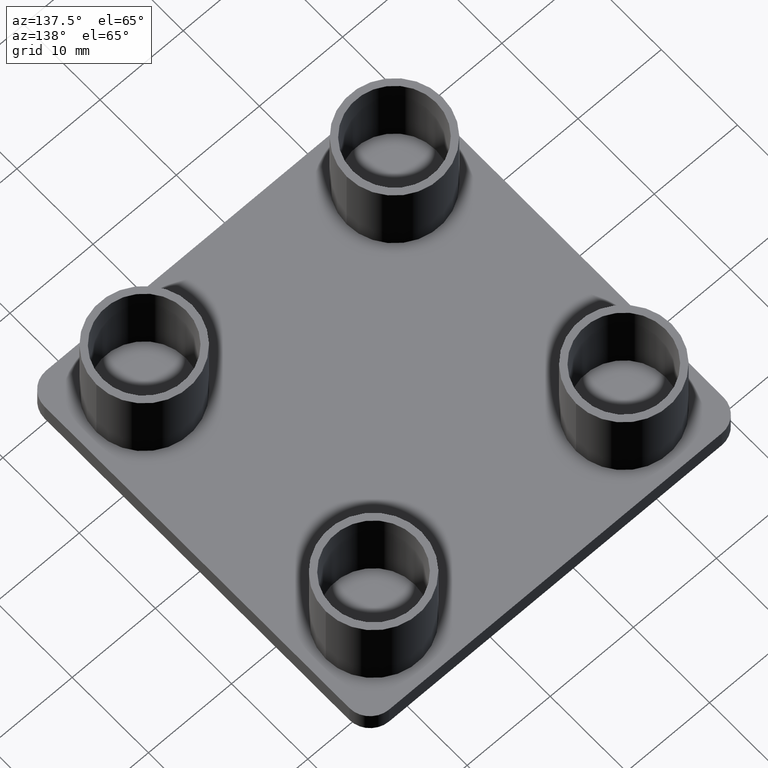
[diagram: clean part render]
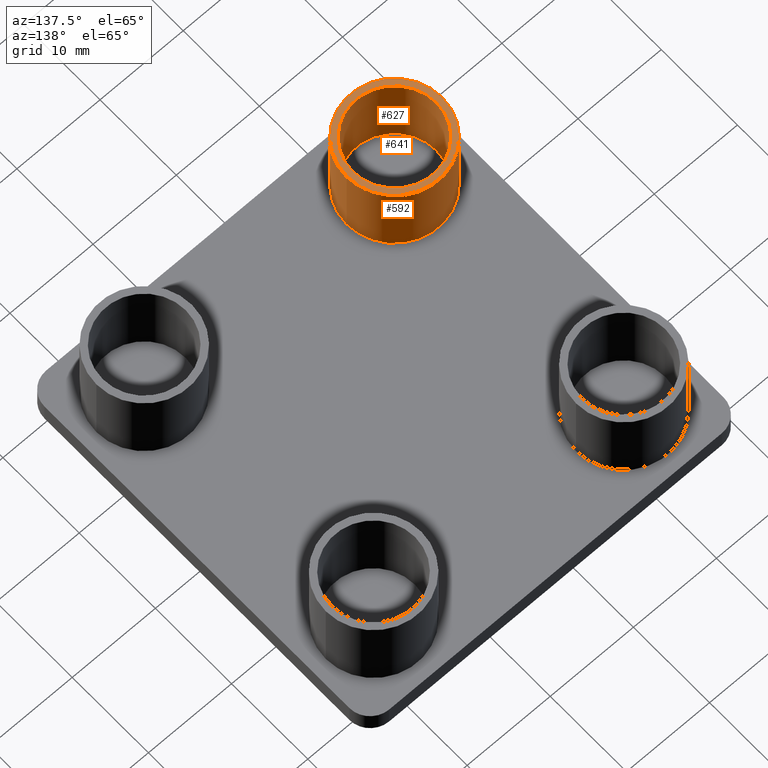
[diagram: same view with one multi-face feature highlighted, each face labeled with its STEP entity id]
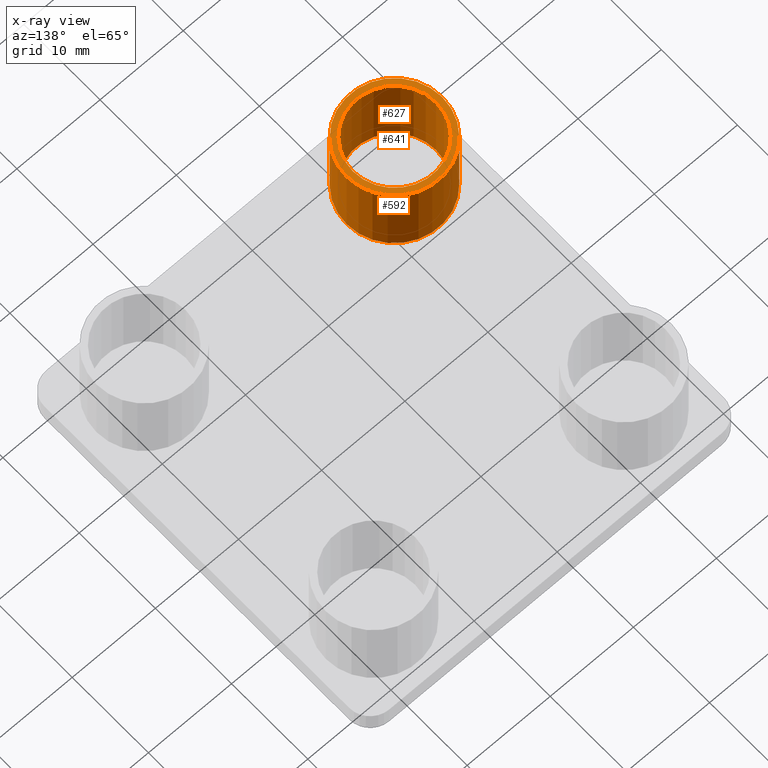
[diagram: x-ray of the same camera — body ghosted, the whole feature saturated]
A machine part, auxiliary view. The highlighted faces form ONE feature: a stepped (counterbored) hole: 2 coaxial cylindrical walls of radii 5 -> 5.75 mm joined by 1 annular planar shoulder face(s). The faces share edges in the B-rep.
The next image is the same camera in x-ray: the body ghosted and the whole hole feature saturated, so the bore chain is visible through the body.
Their STEP definitions:
[1] entity #592 (Cylinder):
#293=CARTESIAN_POINT('',(1.699955499992746,-15.050022499940042,0.0));
#294=VERTEX_POINT('',#293);
#295=CARTESIAN_POINT('',(13.199955499946554,-15.050022499940042,0.0));
#296=VERTEX_POINT('',#295);
#297=CARTESIAN_POINT('',(7.449955499969747,-15.050022499940042,0.0));
#298=DIRECTION('',(0.0,0.0,1.0));
#299=DIRECTION('',(1.0,0.0,0.0));
#300=AXIS2_PLACEMENT_3D('',#297,#298,#299);
#301=CIRCLE('',#300,5.749999999977001);
#302=EDGE_CURVE('',#294,#296,#301,.T.);
#304=CARTESIAN_POINT('',(7.449955499969747,-15.050022499940042,0.0));
#305=DIRECTION('',(0.0,0.0,1.0));
#306=DIRECTION('',(1.0,0.0,0.0));
#307=AXIS2_PLACEMENT_3D('',#304,#305,#306);
#308=CIRCLE('',#307,5.749999999977001);
#309=EDGE_CURVE('',#296,#294,#308,.T.);
#558=CARTESIAN_POINT('',(7.449955499969747,-15.050022499940042,0.0));
#559=DIRECTION('',(0.0,0.0,1.0));
#560=DIRECTION('',(1.0,0.0,0.0));
#561=AXIS2_PLACEMENT_3D('',#558,#559,#560);
#562=CYLINDRICAL_SURFACE('',#561,5.749999999977001);
#563=CARTESIAN_POINT('',(1.699955499992746,-15.050022499940042,10.0));
#564=VERTEX_POINT('',#563);
#565=CARTESIAN_POINT('',(13.199955499946554,-15.050022499940042,10.0));
#566=VERTEX_POINT('',#565);
#567=CARTESIAN_POINT('',(7.449955499969747,-15.050022499940042,10.0));
#568=DIRECTION('',(0.0,0.0,1.0));
#569=DIRECTION('',(1.0,0.0,0.0));
#570=AXIS2_PLACEMENT_3D('',#567,#568,#569);
#571=CIRCLE('',#570,5.749999999977001);
#572=EDGE_CURVE('',#564,#566,#571,.T.);
#573=ORIENTED_EDGE('',*,*,#572,.F.);
#574=CARTESIAN_POINT('',(7.449955499969747,-15.050022499940042,10.0));
#575=DIRECTION('',(0.0,0.0,1.0));
#576=DIRECTION('',(1.0,0.0,0.0));
#577=AXIS2_PLACEMENT_3D('',#574,#575,#576);
#578=CIRCLE('',#577,5.749999999977001);
#579=EDGE_CURVE('',#566,#564,#578,.T.);
#580=ORIENTED_EDGE('',*,*,#579,.F.);
#581=CARTESIAN_POINT('',(13.199955499946554,-15.050022499940042,0.0));
#582=DIRECTION('',(0.0,0.0,1.0));
#583=VECTOR('',#582,10.0);
#584=LINE('',#581,#583);
#585=EDGE_CURVE('',#296,#566,#584,.T.);
#586=ORIENTED_EDGE('',*,*,#585,.F.);
#587=ORIENTED_EDGE('',*,*,#309,.T.);
#588=ORIENTED_EDGE('',*,*,#302,.T.);
#589=ORIENTED_EDGE('',*,*,#585,.T.);
#590=EDGE_LOOP('',(#573,#580,#586,#587,#588,#589));
#591=FACE_OUTER_BOUND('',#590,.T.);
#592=ADVANCED_FACE('',(#591),#562,.T.);
[2] entity #627 (Cylinder):
#359=CARTESIAN_POINT('',(2.449955499989746,-15.050022499940042,0.0));
#360=VERTEX_POINT('',#359);
#361=CARTESIAN_POINT('',(12.449955499949738,-15.050022499940042,0.0));
#362=VERTEX_POINT('',#361);
#363=CARTESIAN_POINT('',(7.449955499969747,-15.050022499940042,0.0));
#364=DIRECTION('',(0.0,0.0,-1.0));
#365=DIRECTION('',(1.0,0.0,0.0));
#366=AXIS2_PLACEMENT_3D('',#363,#364,#365);
#367=CIRCLE('',#366,4.999999999980001);
#368=EDGE_CURVE('',#360,#362,#367,.T.);
#370=CARTESIAN_POINT('',(7.449955499969747,-15.050022499940042,0.0));
#371=DIRECTION('',(0.0,0.0,-1.0));
#372=DIRECTION('',(1.0,0.0,0.0));
#373=AXIS2_PLACEMENT_3D('',#370,#371,#372);
#374=CIRCLE('',#373,4.999999999980001);
#375=EDGE_CURVE('',#362,#360,#374,.T.);
#593=CARTESIAN_POINT('',(7.449955499969747,-15.050022499940042,0.0));
#594=DIRECTION('',(0.0,0.0,-1.0));
#595=DIRECTION('',(1.0,-2.449294E-016,0.0));
#596=AXIS2_PLACEMENT_3D('',#593,#594,#595);
#597=CYLINDRICAL_SURFACE('',#596,4.999999999980001);
#598=CARTESIAN_POINT('',(2.449955499989746,-15.050022499940042,10.0));
#599=VERTEX_POINT('',#598);
#600=CARTESIAN_POINT('',(12.449955499949738,-15.050022499940042,10.0));
#601=VERTEX_POINT('',#600);
#602=CARTESIAN_POINT('',(7.449955499969747,-15.050022499940042,10.0));
#603=DIRECTION('',(0.0,0.0,-1.0));
#604=DIRECTION('',(1.0,0.0,0.0));
#605=AXIS2_PLACEMENT_3D('',#602,#603,#604);
#606=CIRCLE('',#605,4.999999999980001);
#607=EDGE_CURVE('',#599,#601,#606,.T.);
#608=ORIENTED_EDGE('',*,*,#607,.F.);
#609=CARTESIAN_POINT('',(7.449955499969747,-15.050022499940042,10.0));
#610=DIRECTION('',(0.0,0.0,-1.0));
#611=DIRECTION('',(1.0,0.0,0.0));
#612=AXIS2_PLACEMENT_3D('',#609,#610,#611);
#613=CIRCLE('',#612,4.999999999980001);
#614=EDGE_CURVE('',#601,#599,#613,.T.);
#615=ORIENTED_EDGE('',*,*,#614,.F.);
#616=CARTESIAN_POINT('',(12.449955499949738,-15.050022499940042,0.0));
#617=DIRECTION('',(0.0,0.0,1.0));
#618=VECTOR('',#617,10.0);
#619=LINE('',#616,#618);
#620=EDGE_CURVE('',#362,#601,#619,.T.);
#621=ORIENTED_EDGE('',*,*,#620,.F.);
#622=ORIENTED_EDGE('',*,*,#375,.T.);
#623=ORIENTED_EDGE('',*,*,#368,.T.);
#624=ORIENTED_EDGE('',*,*,#620,.T.);
#625=EDGE_LOOP('',(#608,#615,#621,#622,#623,#624));
#626=FACE_OUTER_BOUND('',#625,.T.);
#627=ADVANCED_FACE('',(#626),#597,.F.);
[3] entity #641 (Plane):
#563=CARTESIAN_POINT('',(1.699955499992746,-15.050022499940042,10.0));
#564=VERTEX_POINT('',#563);
#565=CARTESIAN_POINT('',(13.199955499946554,-15.050022499940042,10.0));
#566=VERTEX_POINT('',#565);
#567=CARTESIAN_POINT('',(7.449955499969747,-15.050022499940042,10.0));
#568=DIRECTION('',(0.0,0.0,1.0));
#569=DIRECTION('',(1.0,0.0,0.0));
#570=AXIS2_PLACEMENT_3D('',#567,#568,#569);
#571=CIRCLE('',#570,5.749999999977001);
#572=EDGE_CURVE('',#564,#566,#571,.T.);
#574=CARTESIAN_POINT('',(7.449955499969747,-15.050022499940042,10.0));
#575=DIRECTION('',(0.0,0.0,1.0));
#576=DIRECTION('',(1.0,0.0,0.0));
#577=AXIS2_PLACEMENT_3D('',#574,#575,#576);
#578=CIRCLE('',#577,5.749999999977001);
#579=EDGE_CURVE('',#566,#564,#578,.T.);
#598=CARTESIAN_POINT('',(2.449955499989746,-15.050022499940042,10.0));
#599=VERTEX_POINT('',#598);
#600=CARTESIAN_POINT('',(12.449955499949738,-15.050022499940042,10.0));
#601=VERTEX_POINT('',#600);
#602=CARTESIAN_POINT('',(7.449955499969747,-15.050022499940042,10.0));
#603=DIRECTION('',(0.0,0.0,-1.0));
#604=DIRECTION('',(1.0,0.0,0.0));
#605=AXIS2_PLACEMENT_3D('',#602,#603,#604);
#606=CIRCLE('',#605,4.999999999980001);
#607=EDGE_CURVE('',#599,#601,#606,.T.);
#609=CARTESIAN_POINT('',(7.449955499969747,-15.050022499940042,10.0));
#610=DIRECTION('',(0.0,0.0,-1.0));
#611=DIRECTION('',(1.0,0.0,0.0));
#612=AXIS2_PLACEMENT_3D('',#609,#610,#611);
#613=CIRCLE('',#612,4.999999999980001);
#614=EDGE_CURVE('',#601,#599,#613,.T.);
#628=CARTESIAN_POINT('',(0.549950766130678,-21.950027233751371,10.0));
#629=DIRECTION('',(0.0,0.0,1.0));
#630=DIRECTION('',(1.0,0.0,0.0));
#631=AXIS2_PLACEMENT_3D('',#628,#629,#630);
#632=PLANE('',#631);
#633=ORIENTED_EDGE('',*,*,#579,.T.);
#634=ORIENTED_EDGE('',*,*,#572,.T.);
#635=EDGE_LOOP('',(#633,#634));
#636=FACE_OUTER_BOUND('',#635,.T.);
#637=ORIENTED_EDGE('',*,*,#614,.T.);
#638=ORIENTED_EDGE('',*,*,#607,.T.);
#639=EDGE_LOOP('',(#637,#638));
#640=FACE_BOUND('',#639,.T.);
#641=ADVANCED_FACE('',(#636,#640),#632,.T.);